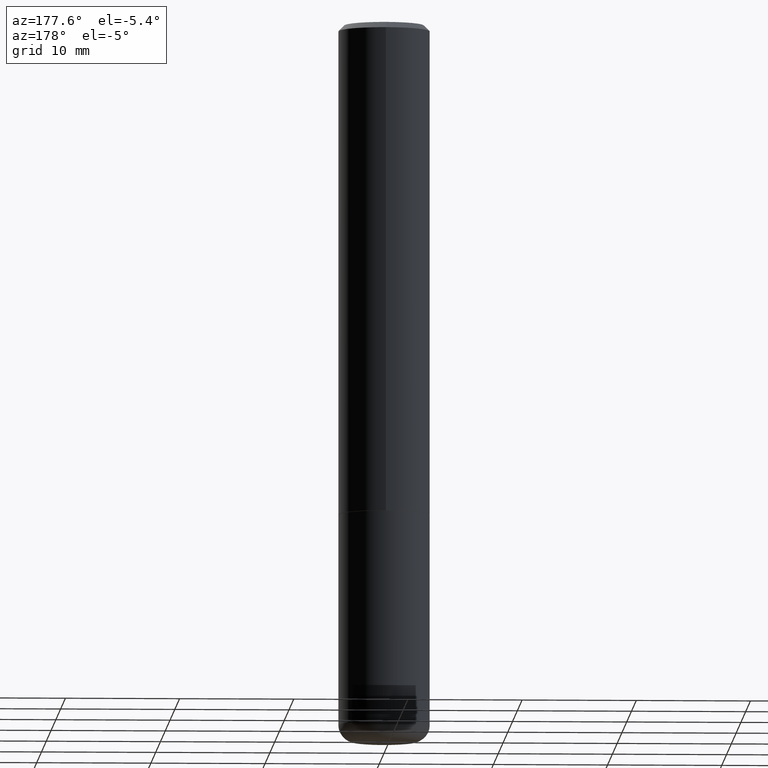
[diagram: clean part render]
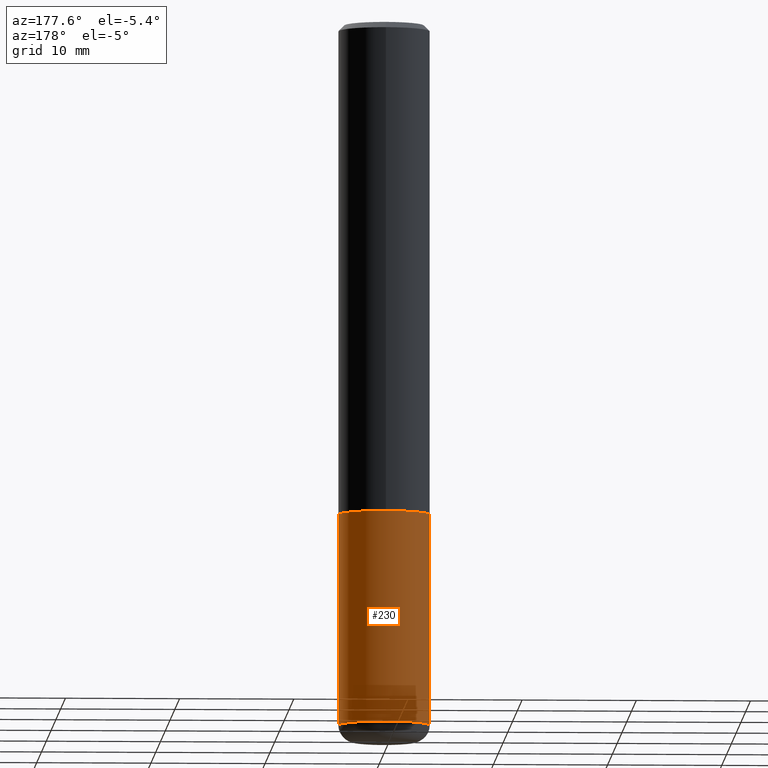
[diagram: same view with one face highlighted and labeled with its STEP entity id]
A machine part, auxiliary view. The second image highlights one B-rep face of the part: STEP entity #230.
In plain terms, the highlighted cylindrical surface (partial cylindrical patch) has radius 4.0005 mm, axis along (-0, 0, 1).
Its self-contained STEP definition (entity closure, byte-faithful):
#11 = EDGE_LOOP ( 'NONE', ( #109, #85, #47, #243 ) ) ;
#27 = EDGE_CURVE ( 'NONE', #239, #74, #159, .T. ) ;
#45 = CARTESIAN_POINT ( 'NONE',  ( -0.1574999999999999456, -7.334469808784867333E-15, -2.421200000000000241 ) ) ;
#47 = ORIENTED_EDGE ( 'NONE', *, *, #79, .F. ) ;
#52 = AXIS2_PLACEMENT_3D ( 'NONE', #56, #162, #377 ) ;
#56 = CARTESIAN_POINT ( 'NONE',  ( 4.139934141990818918E-29, -5.910728758527562653E-15, -1.692900000000000293 ) ) ;
#65 = DIRECTION ( 'NONE',  ( -2.445468806185136597E-29, 3.491481338843145583E-15, 1.000000000000000000 ) ) ;
#72 = AXIS2_PLACEMENT_3D ( 'NONE', #98, #344, #252 ) ;
#74 = VERTEX_POINT ( 'NONE', #379 ) ;
#79 = EDGE_CURVE ( 'NONE', #74, #81, #225, .T. ) ;
#80 = FACE_OUTER_BOUND ( 'NONE', #11, .T. ) ;
#81 = VERTEX_POINT ( 'NONE', #216 ) ;
#85 = ORIENTED_EDGE ( 'NONE', *, *, #199, .T. ) ;
#98 = CARTESIAN_POINT ( 'NONE',  ( 5.920969073535453422E-29, -8.453574617607024936E-15, -2.421200000000000241 ) ) ;
#107 = VERTEX_POINT ( 'NONE', #45 ) ;
#109 = ORIENTED_EDGE ( 'NONE', *, *, #356, .T. ) ;
#119 = CARTESIAN_POINT ( 'NONE',  ( 0.000000000000000000, 0.000000000000000000, 0.000000000000000000 ) ) ;
#144 = LINE ( 'NONE', #242, #176 ) ;
#147 = DIRECTION ( 'NONE',  ( -2.445468806185136877E-29, 3.491481338843145188E-15, 1.000000000000000000 ) ) ;
#159 = LINE ( 'NONE', #403, #342 ) ;
#162 = DIRECTION ( 'NONE',  ( -2.445468806185136597E-29, 3.491481338843145583E-15, 1.000000000000000000 ) ) ;
#176 = VECTOR ( 'NONE', #147, 39.37007874015748143 ) ;
#199 = EDGE_CURVE ( 'NONE', #107, #81, #144, .T. ) ;
#216 = CARTESIAN_POINT ( 'NONE',  ( -0.1575000000000000011, -6.063046879245136191E-15, -1.692900000000000293 ) ) ;
#225 = CIRCLE ( 'NONE', #52, 0.1575000000000000011 ) ;
#230 = ADVANCED_FACE ( 'NONE', ( #80 ), #276, .T. ) ;
#239 = VERTEX_POINT ( 'NONE', #321 ) ;
#242 = CARTESIAN_POINT ( 'NONE',  ( -0.1575000000000000011, 1.119104808822157801E-15, -7.747322767151475583E-30 ) ) ;
#243 = ORIENTED_EDGE ( 'NONE', *, *, #27, .F. ) ;
#251 = DIRECTION ( 'NONE',  ( -2.445468806185136877E-29, 3.491481338843145188E-15, 1.000000000000000000 ) ) ;
#252 = DIRECTION ( 'NONE',  ( 1.000000000000000000, -6.982962677686268288E-15, 0.000000000000000000 ) ) ;
#276 = CYLINDRICAL_SURFACE ( 'NONE', #319, 0.1575000000000000011 ) ;
#319 = AXIS2_PLACEMENT_3D ( 'NONE', #119, #65, #358 ) ;
#321 = CARTESIAN_POINT ( 'NONE',  ( 0.1574999999999999456, -9.553391239342613205E-15, -2.421200000000000241 ) ) ;
#342 = VECTOR ( 'NONE', #251, 39.37007874015748143 ) ;
#344 = DIRECTION ( 'NONE',  ( -2.445468806185136597E-29, 3.491481338843145583E-15, 1.000000000000000000 ) ) ;
#356 = EDGE_CURVE ( 'NONE', #239, #107, #360, .T. ) ;
#358 = DIRECTION ( 'NONE',  ( 1.000000000000000000, -6.982962677686265922E-15, 4.876176775795935232E-29 ) ) ;
#360 = CIRCLE ( 'NONE', #72, 0.1575000000000000011 ) ;
#377 = DIRECTION ( 'NONE',  ( 1.000000000000000000, -6.982962677686268288E-15, 0.000000000000000000 ) ) ;
#379 = CARTESIAN_POINT ( 'NONE',  ( 0.1575000000000000011, -7.010545380263150133E-15, -1.692900000000000293 ) ) ;
#403 = CARTESIAN_POINT ( 'NONE',  ( 0.1575000000000000011, -1.099816621735586889E-15, 7.679978421878598033E-30 ) ) ;